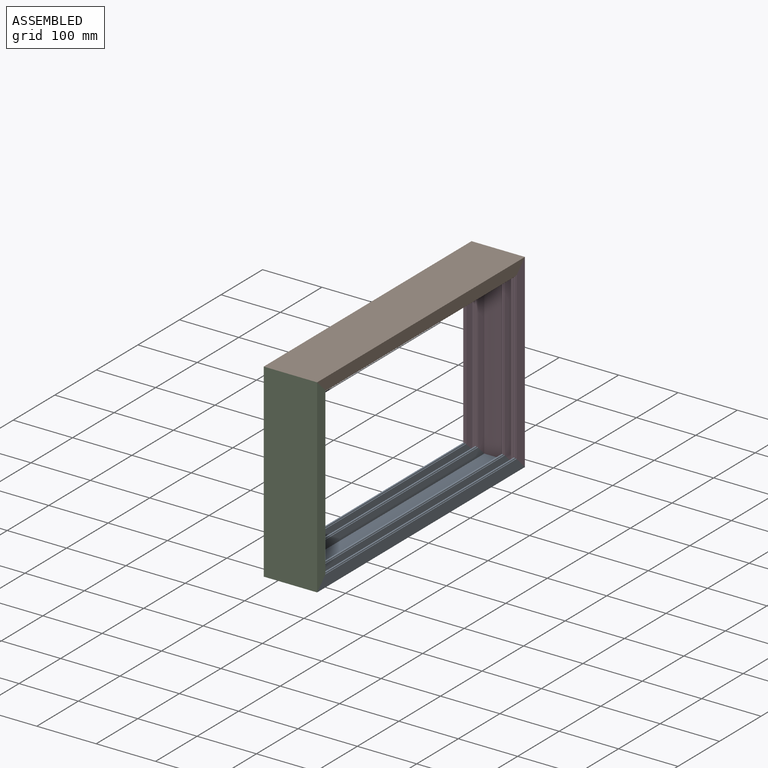
[diagram: assembled view]
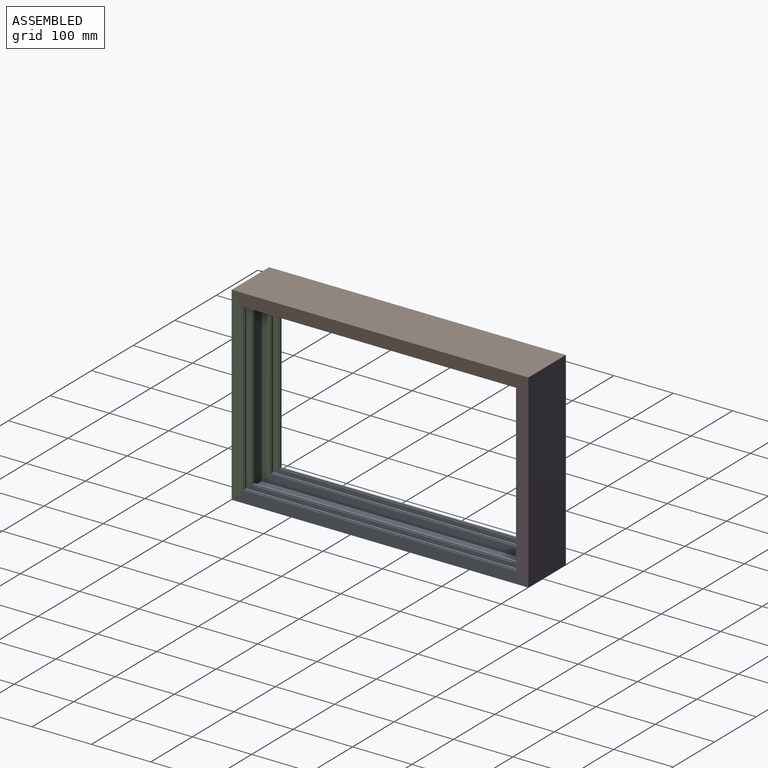
[diagram: assembled view, second angle]
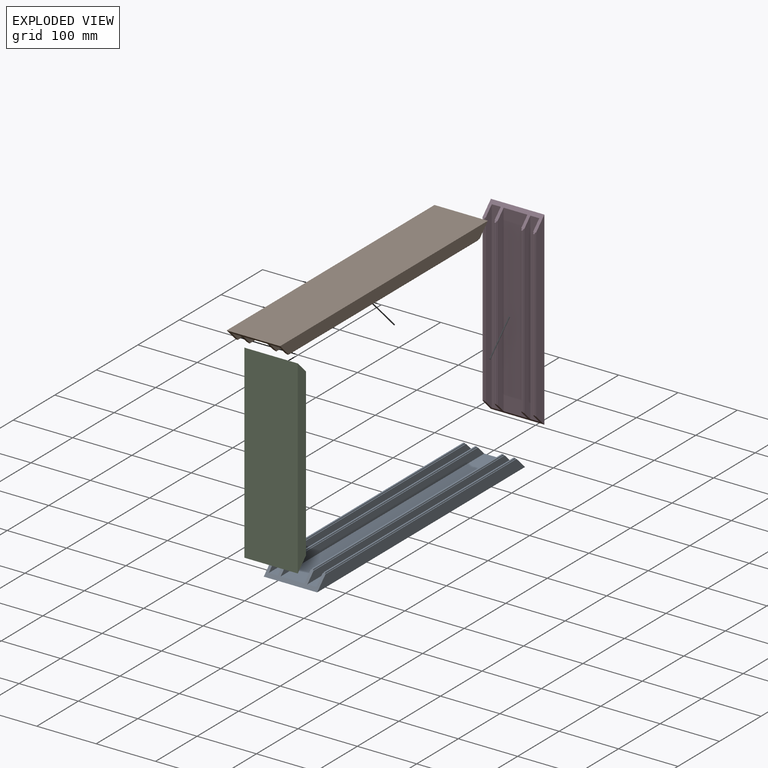
[diagram: exploded view]
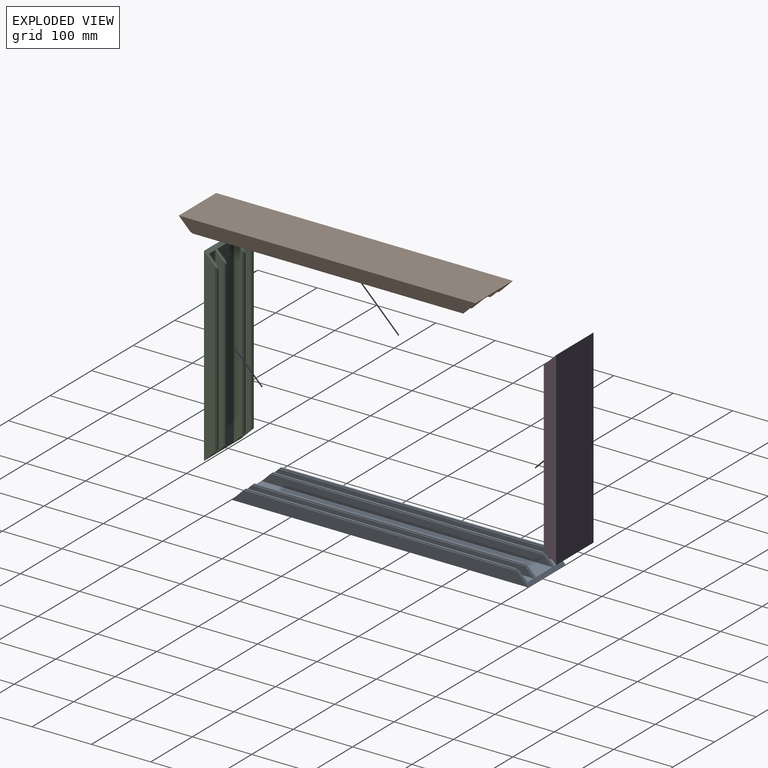
[diagram: exploded view, second angle]
ASSEMBLY  parts=4 mates=3
PART A: 50 faces, bbox 90x500x22 mm
  f0: plane 500x19.9mm, normal (1,0,0), area 9554mm2, adj f35,f39,f40,f41
  f1: plane 460x1.15mm, normal (0,0,1), area 529mm2, adj f2,f35,f40,f41
  f2: plane 460x1.5mm, normal (1,0,0), area 687.7mm2, adj f1,f40,f41,f42
  f3: plane 456x1.5mm, normal (0,0,1), area 684mm2, adj f40,f41,f42,f43
  f4: plane 460x1.5mm, normal (-1,0,0), area 687.7mm2, adj f5,f40,f41,f43
  f5: plane 460x1.15mm, normal (0,0,1), area 529mm2, adj f4,f36,f40,f41
  f6: plane 490x14.9mm, normal (-1,0,0), area 7079mm2, adj f7,f36,f40,f41
  f7: plane 490x15mm, normal (0,0,1), area 7350mm2, adj f6,f8,f40,f41
  f8: plane 490x14.9mm, normal (1,0,0), area 7079mm2, adj f7,f37,f40,f41
  f9: plane 460x1.15mm, normal (0,0,1), area 529mm2, adj f10,f37,f40,f41
  f10: plane 460x1.5mm, normal (1,0,0), area 687.7mm2, adj f9,f40,f41,f44
  f11: plane 456x1.5mm, normal (0,0,1), area 684mm2, adj f40,f41,f44,f45
  f12: plane 460x1.5mm, normal (-1,0,0), area 687.7mm2, adj f13,f40,f41,f45
  f13: plane 460x1.15mm, normal (0,0,1), area 529mm2, adj f12,f38,f40,f41
  f14: plane 490x14.9mm, normal (-1,0,0), area 7079mm2, adj f15,f38,f40,f41
  f15: plane 490x40mm, normal (0,0,1), area 19600mm2, adj f14,f16,f40,f41
  f16: plane 490x14.9mm, normal (1,0,0), area 7079mm2, adj f15,f31,f40,f41
  f17: plane 460x1.15mm, normal (0,0,1), area 529mm2, adj f18,f31,f40,f41
  f18: plane 460x1.5mm, normal (1,0,0), area 687.7mm2, adj f17,f40,f41,f46
  f19: plane 456x1.5mm, normal (0,0,1), area 684mm2, adj f40,f41,f46,f47
  f20: plane 460x1.5mm, normal (-1,0,0), area 687.7mm2, adj f21,f40,f41,f47
  f21: plane 460x1.15mm, normal (0,0,1), area 529mm2, adj f20,f32,f40,f41
  f22: plane 490x14.9mm, normal (-1,0,0), area 7079mm2, adj f23,f32,f40,f41
  f23: plane 490x15mm, normal (0,0,1), area 7350mm2, adj f22,f24,f40,f41
  f24: plane 490x14.9mm, normal (1,0,0), area 7079mm2, adj f23,f33,f40,f41
  f25: plane 460x1.15mm, normal (0,0,1), area 529mm2, adj f26,f33,f40,f41
  f26: plane 460x1.5mm, normal (1,0,0), area 687.7mm2, adj f25,f40,f41,f48
  f27: plane 456x1.5mm, normal (0,0,1), area 684mm2, adj f40,f41,f48,f49
  f28: plane 460x1.5mm, normal (-1,0,0), area 687.7mm2, adj f29,f40,f41,f49
  f29: plane 460x1.15mm, normal (0,0,1), area 529mm2, adj f28,f34,f40,f41
  f30: plane 500x19.9mm, normal (-1,0,0), area 9554mm2, adj f34,f39,f40,f41
  f31: cylinder r=0.1mm len=460.2mm, axis (0,1,0), area 72.3mm2, adj f16,f17,f40,f41
  f32: cylinder r=0.1mm len=460.2mm, axis (0,1,0), area 72.3mm2, adj f21,f22,f40,f41
  f33: cylinder r=0.1mm len=460.2mm, axis (0,1,0), area 72.3mm2, adj f24,f25,f40,f41
  f34: cylinder r=0.1mm len=460.2mm, axis (0,1,0), area 72.3mm2, adj f29,f30,f40,f41
  f35: cylinder r=0.1mm len=460.2mm, axis (0,1,0), area 72.3mm2, adj f0,f1,f40,f41
  f36: cylinder r=0.1mm len=460.2mm, axis (0,1,0), area 72.3mm2, adj f5,f6,f40,f41
  f37: cylinder r=0.1mm len=460.2mm, axis (0,1,0), area 72.3mm2, adj f8,f9,f40,f41
  f38: cylinder r=0.1mm len=460.2mm, axis (0,1,0), area 72.3mm2, adj f13,f14,f40,f41
  f39: plane 500x90mm, normal (0,0,-1), area 45000mm2, adj f0,f30,f40,f41
  f40: plane 90x22mm, normal (0,-0.71,0.71), area 1088.3mm2, adj f0,f1,f2,f3,f4,f5,f6,f7
  f41: plane 90x22mm, normal (0,0.71,0.71), area 1088.3mm2, adj f0,f1,f2,f3,f4,f5,f6,f7
  f42: cylinder r=0.5mm len=457mm, axis (0,-1,0), area 358.4mm2, adj f2,f3,f40,f41
  f43: cylinder r=0.5mm len=457mm, axis (0,1,0), area 358.4mm2, adj f3,f4,f40,f41
  f44: cylinder r=0.5mm len=457mm, axis (0,-1,0), area 358.4mm2, adj f10,f11,f40,f41
  f45: cylinder r=0.5mm len=457mm, axis (0,1,0), area 358.4mm2, adj f11,f12,f40,f41
  f46: cylinder r=0.5mm len=457mm, axis (0,1,0), area 358.4mm2, adj f18,f19,f40,f41
  f47: cylinder r=0.5mm len=457mm, axis (0,-1,0), area 358.4mm2, adj f19,f20,f40,f41
  f48: cylinder r=0.5mm len=457mm, axis (0,1,0), area 358.4mm2, adj f26,f27,f40,f41
  f49: cylinder r=0.5mm len=457mm, axis (0,-1,0), area 358.4mm2, adj f27,f28,f40,f41
PART B: same geometry as A
PART C: 50 faces, bbox 90x22x319.9 mm
  f0: plane 279.9x1.5mm, normal (1,0,0), area 417.6mm2, adj f18,f23,f31,f32
  f1: plane 279.9x1.5mm, normal (-1,0,0), area 417.6mm2, adj f19,f31,f32,f34
  f2: plane 275.9x1.5mm, normal (0,-1,0), area 413.8mm2, adj f18,f19,f31,f32
  f3: plane 279.9x1.5mm, normal (-1,0,0), area 417.6mm2, adj f13,f31,f32,f39
  f4: plane 279.9x1.5mm, normal (1,0,0), area 417.6mm2, adj f12,f22,f31,f32
  f5: plane 275.9x1.5mm, normal (0,-1,0), area 413.8mm2, adj f12,f13,f31,f32
  f6: plane 279.9x1.5mm, normal (1,0,0), area 417.6mm2, adj f16,f21,f31,f32
  f7: plane 279.9x1.5mm, normal (-1,0,0), area 417.6mm2, adj f17,f31,f32,f36
  f8: plane 275.9x1.5mm, normal (0,-1,0), area 413.9mm2, adj f16,f17,f31,f32
  f9: plane 279.9x1.5mm, normal (1,0,0), area 417.6mm2, adj f14,f20,f31,f32
  f10: plane 279.9x1.5mm, normal (-1,0,0), area 417.6mm2, adj f15,f31,f32,f33
  f11: plane 275.9x1.5mm, normal (0,-1,0), area 413.8mm2, adj f14,f15,f31,f32
  f12: cylinder r=0.5mm len=276.9mm, axis (0,0,-1), area 217mm2, adj f4,f5,f31,f32
  f13: cylinder r=0.5mm len=276.9mm, axis (0,0,1), area 217mm2, adj f3,f5,f31,f32
  f14: cylinder r=0.5mm len=276.9mm, axis (0,0,-1), area 217mm2, adj f9,f11,f31,f32
  f15: cylinder r=0.5mm len=276.9mm, axis (0,0,1), area 217mm2, adj f10,f11,f31,f32
  f16: cylinder r=0.5mm len=276.9mm, axis (0,0,-1), area 217mm2, adj f6,f8,f31,f32
  f17: cylinder r=0.5mm len=276.9mm, axis (0,0,1), area 217mm2, adj f7,f8,f31,f32
  f18: cylinder r=0.5mm len=276.9mm, axis (0,0,-1), area 217mm2, adj f0,f2,f31,f32
  f19: cylinder r=0.5mm len=276.9mm, axis (0,0,1), area 217mm2, adj f1,f2,f31,f32
  f20: plane 279.9x1.15mm, normal (0,-1,0), area 321.9mm2, adj f9,f31,f32,f44
  f21: plane 279.9x1.15mm, normal (0,-1,0), area 321.9mm2, adj f6,f31,f32,f49
  f22: plane 279.9x1.15mm, normal (0,-1,0), area 321.9mm2, adj f4,f31,f32,f48
  f23: plane 279.9x1.15mm, normal (0,-1,0), area 321.9mm2, adj f0,f31,f32,f46
  f24: plane 309.9x15mm, normal (0,-1,0), area 4648.5mm2, adj f29,f31,f32,f38
  f25: plane 309.9x40mm, normal (0,-1,0), area 12396mm2, adj f31,f32,f37,f40
  f26: plane 319.9x19.9mm, normal (1,0,0), area 5970mm2, adj f31,f32,f35,f44
  f27: plane 319.9x19.9mm, normal (-1,0,0), area 5970mm2, adj f31,f32,f35,f45
  f28: plane 309.9x15mm, normal (0,-1,0), area 4648.5mm2, adj f30,f31,f32,f41
  f29: plane 309.9x14.9mm, normal (-1,0,0), area 4395.5mm2, adj f24,f31,f32,f42
  f30: plane 309.9x14.9mm, normal (1,0,0), area 4395.5mm2, adj f28,f31,f32,f46
  f31: plane 90x22mm, normal (0,-0.71,0.71), area 1088.3mm2, adj f0,f1,f2,f3,f4,f5,f6,f7
  f32: plane 90x22mm, normal (0,-0.71,-0.71), area 1088.3mm2, adj f0,f1,f2,f3,f4,f5,f6,f7
  f33: plane 279.9x1.15mm, normal (0,-1,0), area 321.9mm2, adj f10,f31,f32,f42
  f34: plane 279.9x1.15mm, normal (0,-1,0), area 321.9mm2, adj f1,f31,f32,f45
  f35: plane 319.9x90mm, normal (0,1,0), area 28791mm2, adj f26,f27,f31,f32
  f36: plane 279.9x1.15mm, normal (0,-1,0), area 321.9mm2, adj f7,f31,f32,f43
  f37: plane 309.9x14.9mm, normal (-1,0,0), area 4395.5mm2, adj f25,f31,f32,f43
  f38: plane 309.9x14.9mm, normal (1,0,0), area 4395.5mm2, adj f24,f31,f32,f49
  f39: plane 279.9x1.15mm, normal (0,-1,0), area 321.9mm2, adj f3,f31,f32,f47
  f40: plane 309.9x14.9mm, normal (1,0,0), area 4395.5mm2, adj f25,f31,f32,f48
  f41: plane 309.9x14.9mm, normal (-1,0,0), area 4395.5mm2, adj f28,f31,f32,f47
  f42: cylinder r=0.1mm len=280.1mm, axis (0,0,1), area 44mm2, adj f29,f31,f32,f33
  f43: cylinder r=0.1mm len=280.1mm, axis (0,0,1), area 44mm2, adj f31,f32,f36,f37
  f44: cylinder r=0.1mm len=280.1mm, axis (0,0,-1), area 44mm2, adj f20,f26,f31,f32
  f45: cylinder r=0.1mm len=280.1mm, axis (0,0,1), area 44mm2, adj f27,f31,f32,f34
  f46: cylinder r=0.1mm len=280.1mm, axis (0,0,-1), area 44mm2, adj f23,f30,f31,f32
  f47: cylinder r=0.1mm len=280.1mm, axis (0,0,1), area 44mm2, adj f31,f32,f39,f41
  f48: cylinder r=0.1mm len=280.1mm, axis (0,0,-1), area 44mm2, adj f22,f31,f32,f40
  f49: cylinder r=0.1mm len=280.1mm, axis (0,0,-1), area 44mm2, adj f21,f31,f32,f38
PART D: same geometry as C
PLACE A rot(axis=(0,0,1),180deg) t=(195.16,-375.64,-345.92)mm
PLACE B rot(axis=(1,0,0),180deg) t=(195.16,-375.64,-66.02)mm fixed
PLACE C rot(axis=(0,0,-1),180deg) t=(195.16,-375.64,-345.92)mm
PLACE D t=(195.16,-375.64,-345.92)mm
MATE fastened D.f32 <-> A.f40  axis (0,-0.71,-0.71) through (195.16,-125.64,-365.92)mm
MATE fastened B.f40 <-> D.f31  axis (0,0.71,-0.71) through (195.16,-125.64,-46.02)mm
MATE fastened A.f41 <-> C.f32  axis (0,-0.71,0.71) through (195.16,-625.64,-365.92)mm
